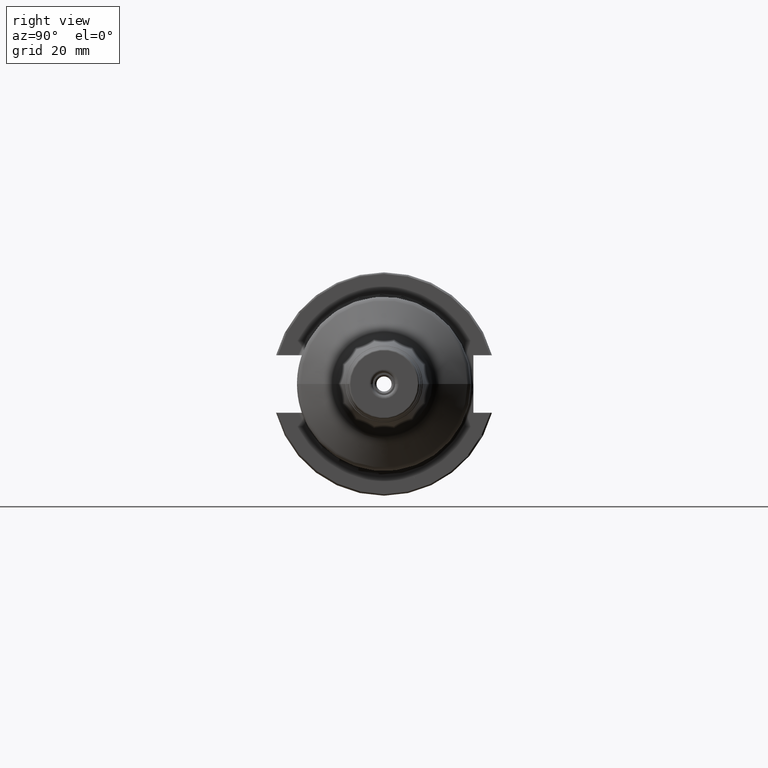
[diagram: clean part render]
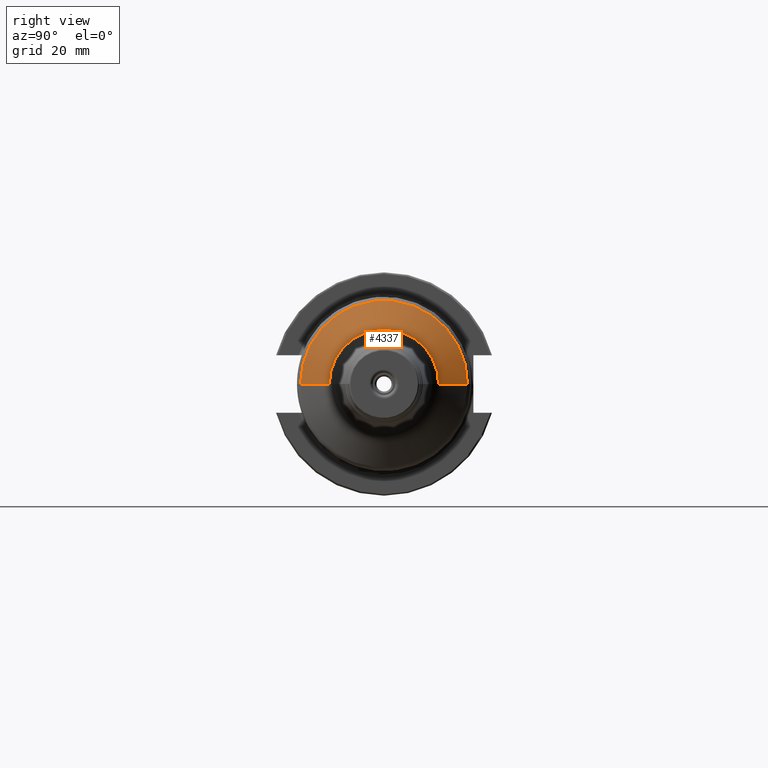
[diagram: same view with one face highlighted and labeled with its STEP entity id]
A machine part, right view. The second image highlights one B-rep face of the part: STEP entity #4337.
In plain terms, the highlighted conical surface has half-angle 60 deg.
Its self-contained STEP definition (entity closure, byte-faithful):
#1631=CARTESIAN_POINT('',(1.925377977578E0,0.E0,0.E0));
#1632=DIRECTION('',(1.E0,0.E0,0.E0));
#1633=DIRECTION('',(0.E0,1.E0,0.E0));
#1634=AXIS2_PLACEMENT_3D('',#1631,#1632,#1633);
#1636=CARTESIAN_POINT('',(1.739043575302E0,0.E0,0.E0));
#1637=DIRECTION('',(-1.E0,0.E0,0.E0));
#1638=DIRECTION('',(0.E0,-1.E0,0.E0));
#1639=AXIS2_PLACEMENT_3D('',#1636,#1637,#1638);
#1641=DIRECTION('',(-5.E-1,8.660254037844E-1,1.429997234190E-11));
#1642=VECTOR('',#1641,3.726688045512E-1);
#1643=CARTESIAN_POINT('',(1.925377977578E0,6.117593480597E-1,
-4.393821434051E-14));
#1644=LINE('',#1643,#1642);
#1650=DIRECTION('',(-5.E-1,-8.660254037844E-1,-1.430012800570E-11));
#1651=VECTOR('',#1650,3.726688045512E-1);
#1652=CARTESIAN_POINT('',(1.925377977578E0,-6.117593480597E-1,
4.384921969260E-14));
#1653=LINE('',#1652,#1651);
#2588=CARTESIAN_POINT('',(1.739043575302E0,9.345E-1,0.E0));
#2589=CARTESIAN_POINT('',(1.739043575302E0,-9.345E-1,0.E0));
#2590=VERTEX_POINT('',#2588);
#2591=VERTEX_POINT('',#2589);
#2592=CARTESIAN_POINT('',(1.925377977578E0,6.117593480597E-1,
-4.393821434051E-14));
#2593=VERTEX_POINT('',#2592);
#2594=CARTESIAN_POINT('',(1.925377977578E0,-6.117593480597E-1,
4.384921969260E-14));
#2595=VERTEX_POINT('',#2594);
#4324=CARTESIAN_POINT('',(1.832210776440E0,0.E0,0.E0));
#4325=DIRECTION('',(-1.E0,0.E0,0.E0));
#4326=DIRECTION('',(0.E0,1.E0,0.E0));
#4327=AXIS2_PLACEMENT_3D('',#4324,#4325,#4326);
#4328=CONICAL_SURFACE('',#4327,7.731296740298E-1,6.E1);
#4330=ORIENTED_EDGE('',*,*,#4329,.F.);
#4331=ORIENTED_EDGE('',*,*,#4314,.T.);
#4333=ORIENTED_EDGE('',*,*,#4332,.T.);
#4334=ORIENTED_EDGE('',*,*,#2988,.T.);
#4335=EDGE_LOOP('',(#4330,#4331,#4333,#4334));
#4336=FACE_OUTER_BOUND('',#4335,.F.);
#4337=ADVANCED_FACE('',(#4336),#4328,.T.);
#1635=CIRCLE('',#1634,6.117593480596E-1);
#1640=CIRCLE('',#1639,9.345E-1);
#2988=EDGE_CURVE('',#2591,#2590,#1640,.T.);
#4314=EDGE_CURVE('',#2593,#2595,#1635,.T.);
#4329=EDGE_CURVE('',#2593,#2590,#1644,.T.);
#4332=EDGE_CURVE('',#2595,#2591,#1653,.T.);